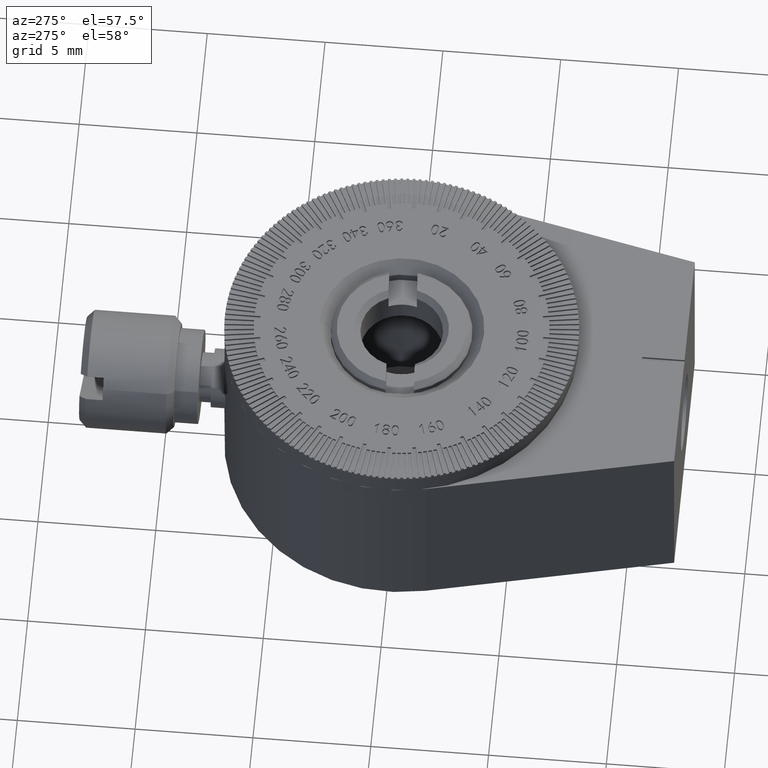
[diagram: clean part render]
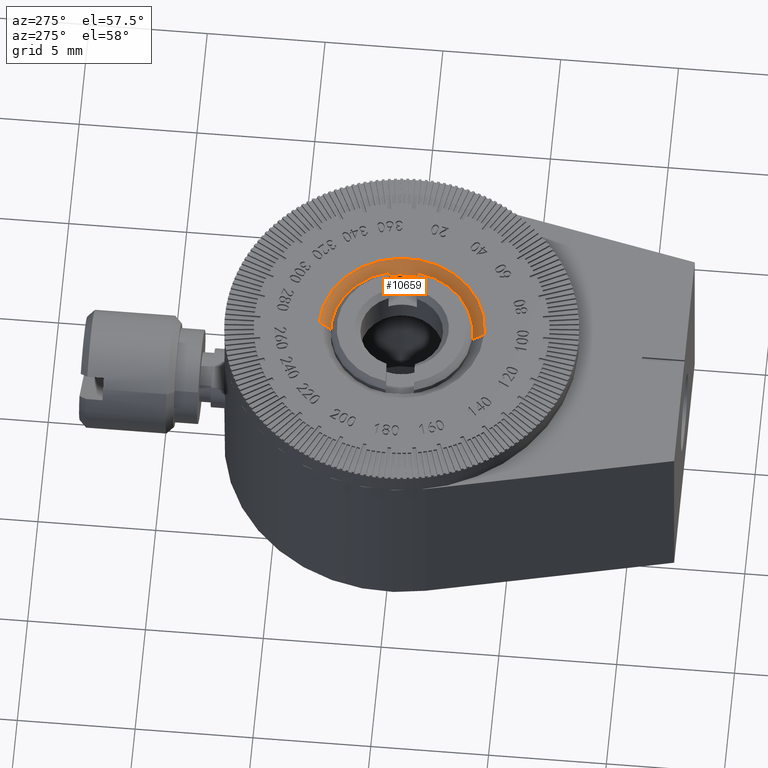
[diagram: same view with one face highlighted and labeled with its STEP entity id]
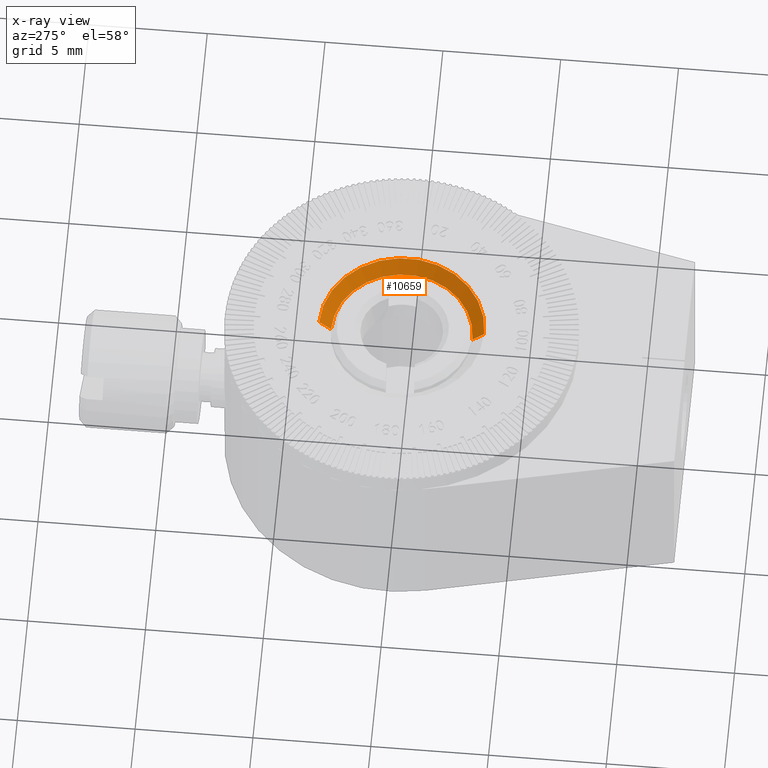
[diagram: x-ray of the same camera — body ghosted, the highlighted face saturated]
A machine part, auxiliary view. The second image highlights one B-rep face of the part: STEP entity #10659.
The next image is the same camera in x-ray: the body ghosted, the highlighted face saturated — about 0% of this face is hidden behind the body in this view.
In plain terms, the highlighted conical surface has half-angle 45 deg.
Its self-contained STEP definition (entity closure, byte-faithful):
#3101 = CARTESIAN_POINT ( 'NONE',  ( 0.000000000000000000, 0.4999999999999796274, 3.000000000000000444 ) ) ;
#3765 = CARTESIAN_POINT ( 'NONE',  ( 4.286263797015763712E-16, 1.000000000000000000, -3.500000000000022649 ) ) ;
#5588 = DIRECTION ( 'NONE',  ( 0.000000000000000000, 1.000000000000000000, 0.000000000000000000 ) ) ;
#6079 = DIRECTION ( 'NONE',  ( 0.000000000000000000, 0.000000000000000000, 1.000000000000000000 ) ) ;
#6977 = LINE ( 'NONE', #3101, #26073 ) ;
#7521 = ORIENTED_EDGE ( 'NONE', *, *, #25061, .T. ) ;
#10070 = CARTESIAN_POINT ( 'NONE',  ( 0.000000000000000000, 0.4999999999999796274, 0.000000000000000000 ) ) ;
#10659 = ADVANCED_FACE ( 'NONE', ( #33266 ), #15857, .F. ) ;
#13176 = CARTESIAN_POINT ( 'NONE',  ( 0.000000000000000000, 0.4999999999999796274, 0.000000000000000000 ) ) ;
#15857 = CONICAL_SURFACE ( 'NONE', #60912, 3.000000000000000444, 0.7853981633974500554 ) ;
#16349 = EDGE_CURVE ( 'NONE', #19635, #27963, #24113, .T. ) ;
#18320 = DIRECTION ( 'NONE',  ( 0.000000000000000000, 0.000000000000000000, 1.000000000000000000 ) ) ;
#19635 = VERTEX_POINT ( 'NONE', #3765 ) ;
#23007 = DIRECTION ( 'NONE',  ( 0.000000000000000000, 0.7071067811865463515, 0.7071067811865487940 ) ) ;
#24113 = CIRCLE ( 'NONE', #50742, 3.500000000000022649 ) ;
#25061 = EDGE_CURVE ( 'NONE', #39317, #27963, #6977, .T. ) ;
#26073 = VECTOR ( 'NONE', #23007, 1000.000000000000000 ) ;
#27498 = EDGE_CURVE ( 'NONE', #39317, #39659, #60069, .T. ) ;
#27963 = VERTEX_POINT ( 'NONE', #32522 ) ;
#28028 = VECTOR ( 'NONE', #55936, 1000.000000000000000 ) ;
#32522 = CARTESIAN_POINT ( 'NONE',  ( 0.000000000000000000, 1.000000000000000000, 3.500000000000022649 ) ) ;
#33266 = FACE_OUTER_BOUND ( 'NONE', #36506, .T. ) ;
#36358 = LINE ( 'NONE', #36666, #28028 ) ;
#36506 = EDGE_LOOP ( 'NONE', ( #51794, #36623, #7521, #38200 ) ) ;
#36623 = ORIENTED_EDGE ( 'NONE', *, *, #27498, .F. ) ;
#36666 = CARTESIAN_POINT ( 'NONE',  ( 3.673940397442060361E-16, 0.4999999999999796274, -3.000000000000000444 ) ) ;
#38200 = ORIENTED_EDGE ( 'NONE', *, *, #16349, .F. ) ;
#39317 = VERTEX_POINT ( 'NONE', #54579 ) ;
#39659 = VERTEX_POINT ( 'NONE', #54495 ) ;
#40085 = DIRECTION ( 'NONE',  ( -0.000000000000000000, -1.000000000000000000, -0.000000000000000000 ) ) ;
#50742 = AXIS2_PLACEMENT_3D ( 'NONE', #55798, #40085, #6079 ) ;
#51794 = ORIENTED_EDGE ( 'NONE', *, *, #62484, .F. ) ;
#52323 = DIRECTION ( 'NONE',  ( 0.000000000000000000, 1.000000000000000000, 0.000000000000000000 ) ) ;
#54495 = CARTESIAN_POINT ( 'NONE',  ( 3.673940397442059868E-16, 0.4999999999999796274, -3.000000000000000444 ) ) ;
#54579 = CARTESIAN_POINT ( 'NONE',  ( 0.000000000000000000, 0.4999999999999796274, 3.000000000000000444 ) ) ;
#55798 = CARTESIAN_POINT ( 'NONE',  ( 0.000000000000000000, 1.000000000000000000, 0.000000000000000000 ) ) ;
#55936 = DIRECTION ( 'NONE',  ( 8.659560562354950115E-17, 0.7071067811865463515, -0.7071067811865487940 ) ) ;
#59014 = AXIS2_PLACEMENT_3D ( 'NONE', #13176, #52323, #18320 ) ;
#59154 = DIRECTION ( 'NONE',  ( 0.000000000000000000, 0.000000000000000000, 1.000000000000000000 ) ) ;
#60069 = CIRCLE ( 'NONE', #59014, 3.000000000000000444 ) ;
#60912 = AXIS2_PLACEMENT_3D ( 'NONE', #10070, #5588, #59154 ) ;
#62484 = EDGE_CURVE ( 'NONE', #39659, #19635, #36358, .T. ) ;